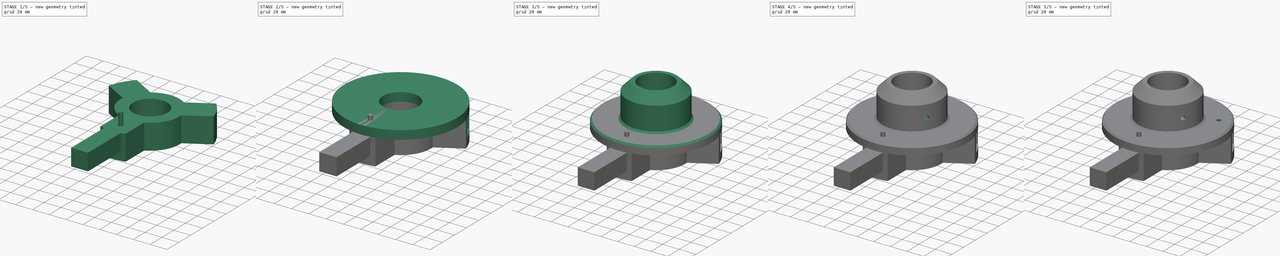
[diagram: build sequence overview — one tinted view per stage of 5, left to right]
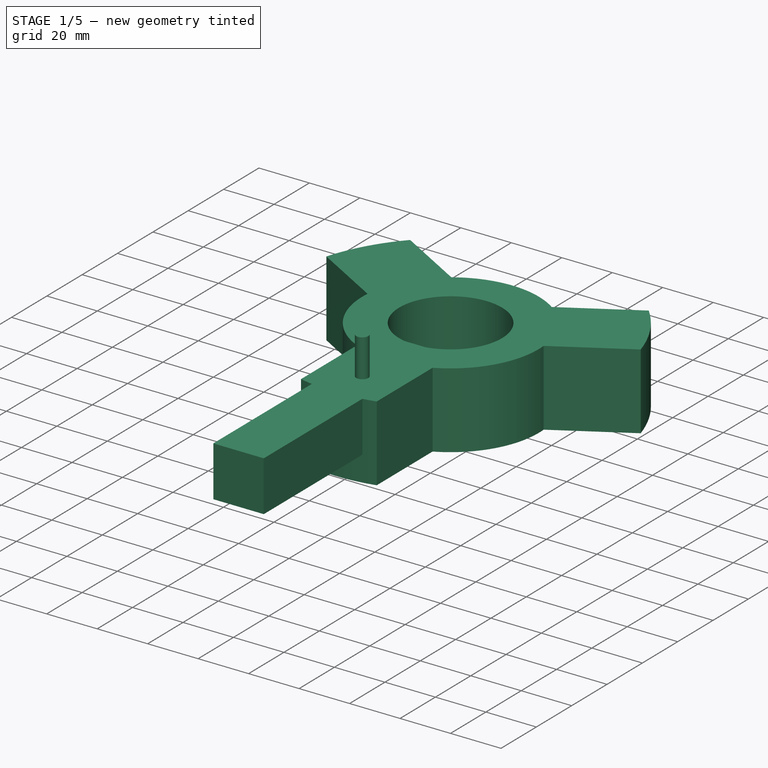
[diagram: stage 1 of 5 — iso view after this stage's code; geometry added in this stage tinted green]
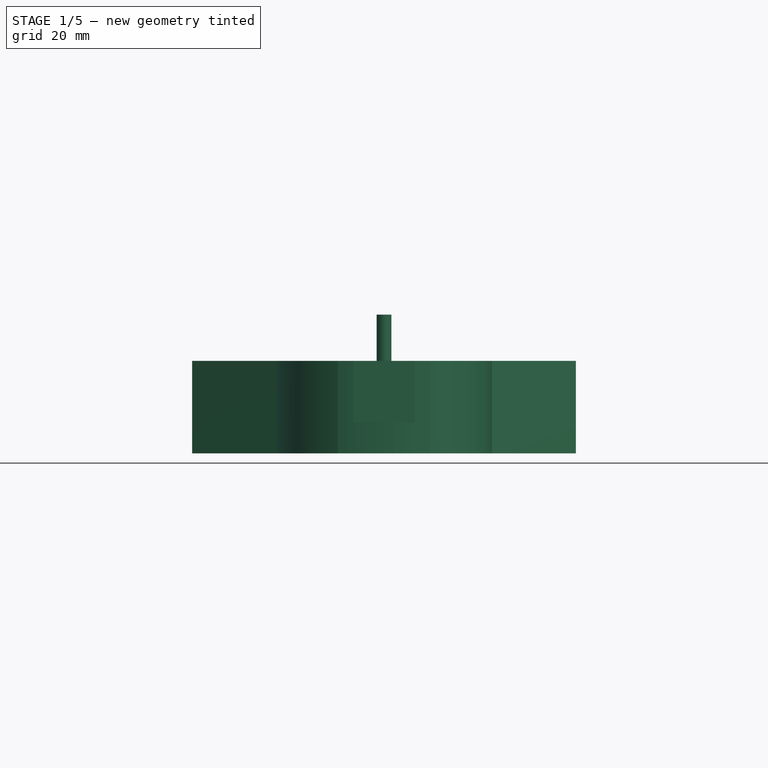
[diagram: stage 1 of 5 — front view after this stage's code; geometry added in this stage tinted green]
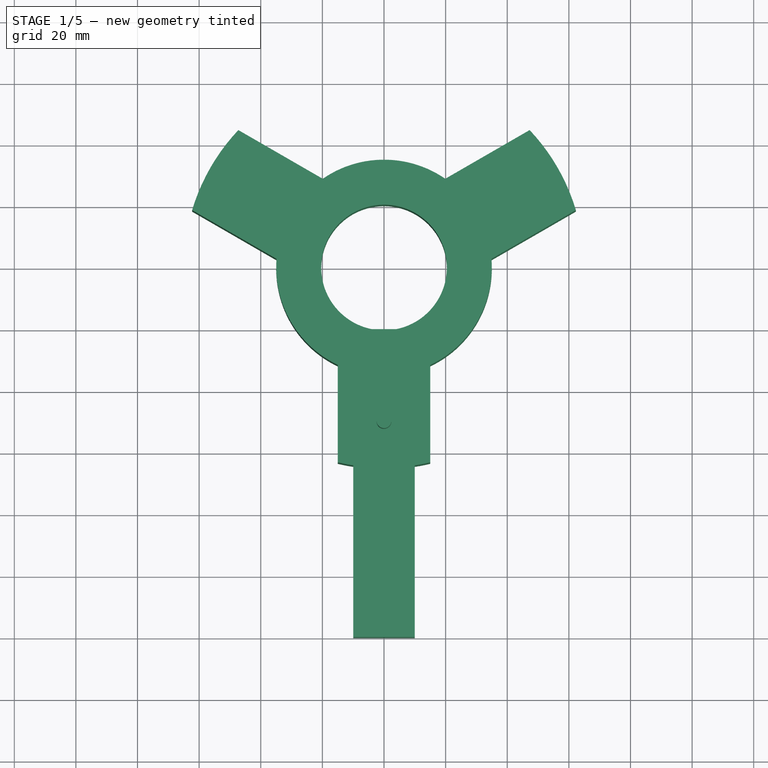
[diagram: stage 1 of 5 — top view after this stage's code; geometry added in this stage tinted green]
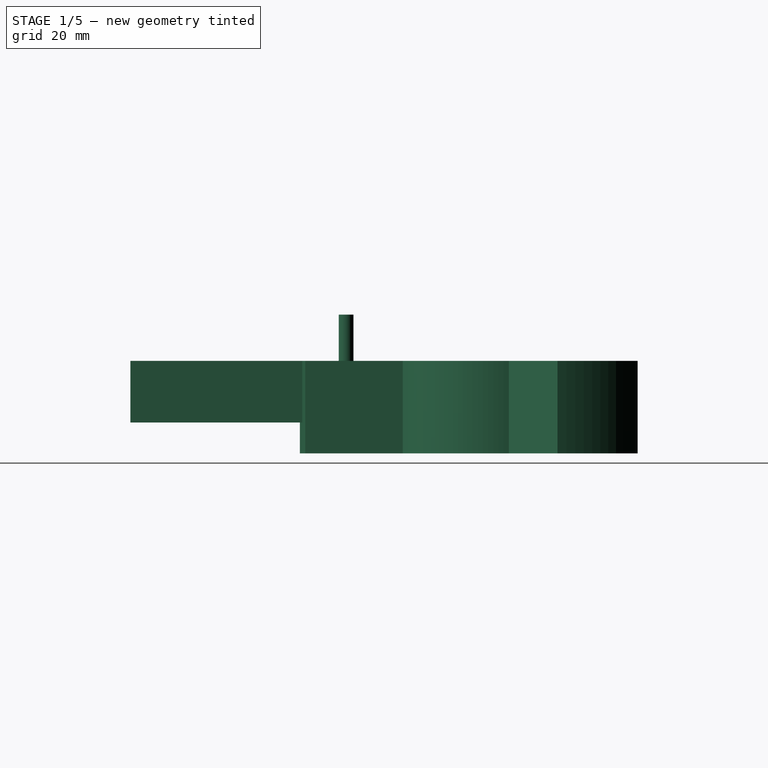
[diagram: stage 1 of 5 — right view after this stage's code; geometry added in this stage tinted green]
FCSTD DOCUMENT  (FreeCAD 0.19R)
Label: reflector_keeper
License: All rights reserved
LicenseURL: http://en.wikipedia.org/wiki/All_rights_reserved
objects: Sketcher::SketchObject×13, PartDesign::Pocket×10, PartDesign::Pad×3, PartDesign::Chamfer×2, PartDesign::Body×2, Part::Box×1, Part::Cylinder×1
note: 45 computed .brp shape members not serialized (recipe doc carries the construction recipe); baked Part::Feature solids carry a one-line shape summary decoded from their .brp

FEATURE [Sketcher::SketchObject] Sketch
  MapMode = 5
  Support = -> [XY_Plane]
  expr: Constraints[36] = .Constraints.holder_width
  expr: Constraints[35] = .Constraints.holder_width
  expr: Constraints[7] = .Constraints.holder_width * 0.5
  sketch-geometry (13):
    g0: Circle CenterX=0 CenterY=0 CenterZ=0 NormalX=0 NormalY=0 NormalZ=1 AngleXU=0 Radius=20.4
    g1: ArcOfCircle CenterX=0 CenterY=0 CenterZ=0 NormalX=0 NormalY=0 NormalZ=1 AngleXU=0 Radius=35 StartAngle=5.1553 EndAngle=6.36387
    g2: LineSegment StartX=-15 StartY=-31.6228 StartZ=0 EndX=-15 EndY=-63.2456 EndZ=0
    g3: LineSegment StartX=15 StartY=-63.2456 StartZ=0 EndX=15 EndY=-31.6228 EndZ=0
    g4: LineSegment StartX=-34.8861 StartY=2.82101 StartZ=0 EndX=-62.2723 EndY=18.6324 EndZ=0
    g5: LineSegment StartX=-47.2723 StartY=44.6132 StartZ=0 EndX=-19.8861 EndY=28.8018 EndZ=0
    g6: LineSegment StartX=19.8861 StartY=28.8018 StartZ=0 EndX=47.2723 EndY=44.6132 EndZ=0
    g7: LineSegment StartX=62.2723 StartY=18.6324 StartZ=0 EndX=34.8861 EndY=2.82101 EndZ=0
    g8: ArcOfCircle CenterX=0 CenterY=0 CenterZ=0 NormalX=0 NormalY=0 NormalZ=1 AngleXU=0 Radius=35 StartAngle=3.0609 EndAngle=4.26948
    g9: ArcOfCircle CenterX=0 CenterY=0 CenterZ=0 NormalX=0 NormalY=0 NormalZ=1 AngleXU=0 Radius=35 StartAngle=0.96651 EndAngle=2.17508
    g10: ArcOfCircle CenterX=0 CenterY=0 CenterZ=0 NormalX=0 NormalY=0 NormalZ=1 AngleXU=0 Radius=65 StartAngle=2.38513 EndAngle=2.85086
    g11: ArcOfCircle CenterX=0 CenterY=0 CenterZ=0 NormalX=0 NormalY=0 NormalZ=1 AngleXU=0 Radius=65 StartAngle=0.290731 EndAngle=0.756467
    g12: ArcOfCircle CenterX=0 CenterY=0 CenterZ=0 NormalX=0 NormalY=0 NormalZ=1 AngleXU=0 Radius=65 StartAngle=4.47952 EndAngle=4.94526
  constraints (40):
    c: Coincident(g0,g-1)
    c: Diameter(g0) = 40.8  'inner_diameter'
    c: Coincident(g1,g0)
    c: Diameter(g1) = 70
    c: Vertical(g2)
    c: Vertical(g3)
    c: DistanceX(g2,g3) = 30  'holder_width'
    c: DistanceX(g2,g-1) = 15
    c: Coincident(g1,g3)
    c: Coincident(g8,g2)
    c: Parallel(g4,g5)
    c: Equal(g2,g4)
    c: Equal(g4,g5)
    c: Parallel(g6,g7)
    c: Equal(g2,g6)
    c: Equal(g6,g7)
    c: Equal(g1,g8)
    c: Coincident(g9,g5)
    c: Coincident(g8,g4)
    c: Coincident(g1,g8)
    c: Coincident(g1,g7)
    c: Coincident(g9,g6)
    c: Coincident(g1,g9)
    c: Coincident(g10,g0)
    c: Coincident(g10,g4)
    c: Coincident(g11,g0)
    c: Coincident(g11,g6)
    c: Coincident(g11,g7)
    c: Coincident(g12,g0)
    c: Coincident(g12,g3)
    c: Coincident(g12,g2)
    c: Equal(g8,g9)
    c: Coincident(g5,g10)
    c: Equal(g2,g7)
    c: Equal(g4,g2)
    c: Distance(g6,g7) = 30
    c: Distance(g5,g4) = 30
    c: Angle(g4,g2) = 2.0944
    c: Angle(g3,g7) = 2.0944
    c: Radius(g12) = 65  'length_a'
FEATURE [PartDesign::Pad] Pad
  Length = 30
  Length2 = 100
  Profile = -> Sketch
  Type = 0
FEATURE [PartDesign::Body] Body  label="BottomBody"
  Group = -> [Sketch,Pad,Pocket010,Sketch012,Sketch010,Pocket008,Sketch011,Pocket009]
  Origin = -> Origin
  Tip = -> Pocket009
FEATURE [Part::Box] Box  label="Profile"
  AttacherType = Attacher::AttachEngine3D
  Height = 20
  Length = 20
  Placement = pos=(-10,-120,10) rot=(0,0,1;0rad)
  Width = 100
FEATURE [Part::Cylinder] Cylinder  label="Skrew"
  Angle = 360
  AttacherType = Attacher::AttachEngine3D
  Height = 45
  Placement = pos=(0,-50,0) rot=(0,0,1;0rad)
  Radius = 2.4
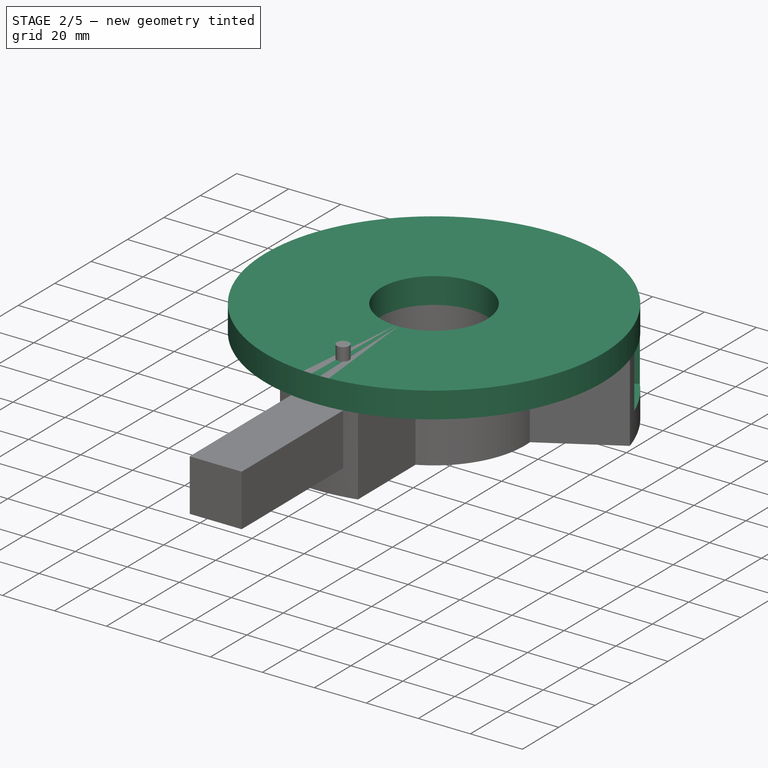
[diagram: stage 2 of 5 — iso view after this stage's code; geometry added in this stage tinted green]
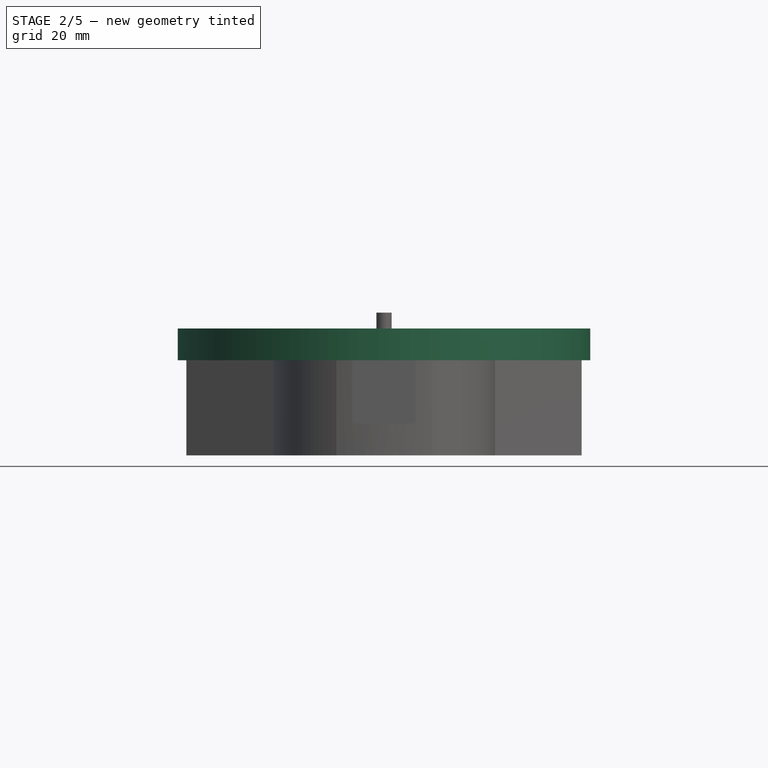
[diagram: stage 2 of 5 — front view after this stage's code; geometry added in this stage tinted green]
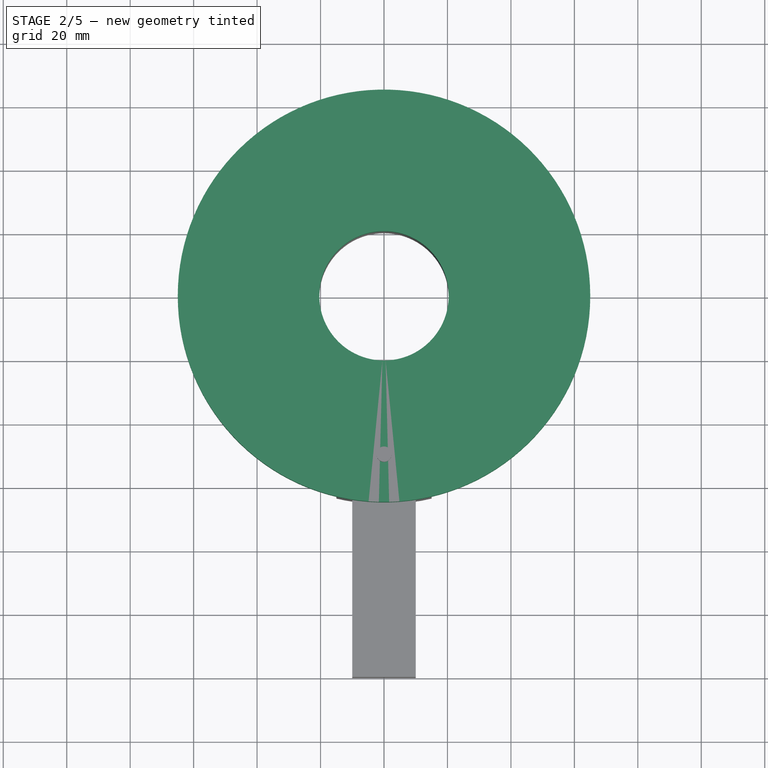
[diagram: stage 2 of 5 — top view after this stage's code; geometry added in this stage tinted green]
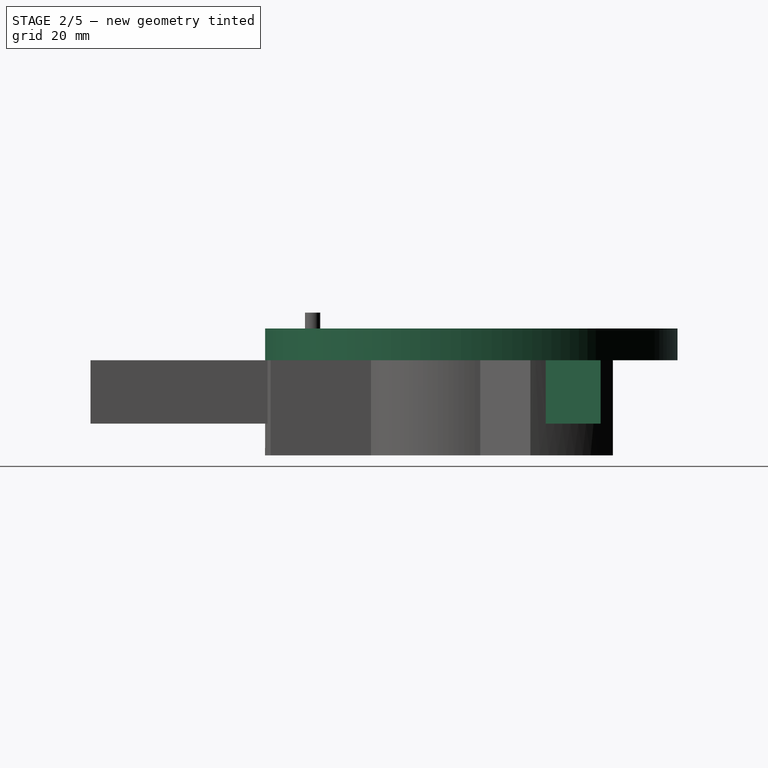
[diagram: stage 2 of 5 — right view after this stage's code; geometry added in this stage tinted green]
FEATURE [Sketcher::SketchObject] Sketch004
  AttachmentOffset = pos=(0,0,30) rot=(0,0,1;0rad)
  MapMode = 5
  Placement = pos=(0,0,30) rot=(0,0,1;0rad)
  Support = -> [XY_Plane001]
  expr: .AttachmentOffset.Base.z = Pad.Length
  expr: Constraints[3] = Sketch.Constraints.inner_diameter
  sketch-geometry (2):
    g0: Circle CenterX=0 CenterY=0 CenterZ=0 NormalX=0 NormalY=0 NormalZ=1 AngleXU=0 Radius=65
    g1: Circle CenterX=0 CenterY=0 CenterZ=0 NormalX=0 NormalY=0 NormalZ=1 AngleXU=0 Radius=20.4
  constraints (4):
    c: Coincident(g0,g-1)
    c: Radius(g0) = 65
    c: Coincident(g1,g0)
    c: Diameter(g1) = 40.8
FEATURE [PartDesign::Pad] Pad001
  Length = 10
  Length2 = 100
  Profile = -> Sketch004
  Type = 0
FEATURE [PartDesign::Body] Body001  label="TopBody"
  Group = -> [Pad001,Pad002,Sketch002,Sketch004,Chamfer,Chamfer001,CopySketch006,Pocket001,CopySketch007,Pocket002,CopySketch008,Pocket003,Sketch006,Pocket004,Sketch007,Pocket005,Sketch008,Pocket006,Sketch009,Pocket007]
  Origin = -> Origin001
  Tip = -> Pocket007
FEATURE [Sketcher::SketchObject] Sketch010  label="SketchBottomHoles002"
  MapMode = 5
  Support = -> [XY_Plane]
  sketch-geometry (7):
    g0: Circle CenterX=0 CenterY=-50 CenterZ=0 NormalX=0 NormalY=0 NormalZ=1 AngleXU=0 Radius=2.5
    g1: Circle [constr] CenterX=0 CenterY=0 CenterZ=0 NormalX=0 NormalY=0 NormalZ=1 AngleXU=0 Radius=50
    g2: Circle CenterX=-43.3013 CenterY=25 CenterZ=0 NormalX=0 NormalY=0 NormalZ=1 AngleXU=0 Radius=2.5
    g3: Circle CenterX=43.3013 CenterY=25 CenterZ=0 NormalX=0 NormalY=0 NormalZ=1 AngleXU=0 Radius=2.5
    g4: LineSegment [constr] StartX=-43.3013 StartY=25 StartZ=0 EndX=0 EndY=0 EndZ=0
    g5: LineSegment [constr] StartX=0 StartY=0 StartZ=0 EndX=0 EndY=-50 EndZ=0
    g6: LineSegment [constr] StartX=0 StartY=0 StartZ=0 EndX=43.3013 EndY=25 EndZ=0
  constraints (17):
    c: Coincident(g1,g-1)
    c: Radius(g1) = 50
    c: PointOnObject(g0,g1)
    c: Diameter(g0) = 5  'hole_size'
    c: PointOnObject(g2,g1)
    c: Equal(g2,g0)
    c: PointOnObject(g3,g1)
    c: Equal(g3,g0)
    c: Coincident(g4,g2)
    c: Coincident(g4,g1)
    c: Coincident(g5,g1)
    c: Coincident(g5,g0)
    c: Vertical(g5)
    c: Coincident(g6,g1)
    c: Coincident(g6,g3)
    c: Angle(g4,g5) = 2.0944
    c: Angle(g5,g6) = 2.0944
FEATURE [Sketcher::SketchObject] Sketch011  label="SketchBottomNutHoles001"
  MapMode = 5
  Support = -> [XY_Plane]
  sketch-geometry (25):
    g0: Circle [constr] CenterX=0 CenterY=0 CenterZ=0 NormalX=0 NormalY=0 NormalZ=1 AngleXU=0 Radius=50
    g1: LineSegment [constr] StartX=-43.3013 StartY=25 StartZ=0 EndX=0 EndY=0 EndZ=0
    g2: LineSegment [constr] StartX=0 StartY=0 StartZ=0 EndX=0 EndY=-50 EndZ=0
    g3: LineSegment [constr] StartX=0 StartY=0 StartZ=0 EndX=43.3013 EndY=25 EndZ=0
    g4: LineSegment StartX=0 StartY=-45.35 StartZ=0 EndX=-4.02702 EndY=-47.675 EndZ=0
    g5: LineSegment StartX=-4.02702 StartY=-47.675 StartZ=0 EndX=-4.02702 EndY=-52.325 EndZ=0
    g6: LineSegment StartX=-4.02702 StartY=-52.325 StartZ=0 EndX=0 EndY=-54.65 EndZ=0
    g7: LineSegment StartX=4e-16 StartY=-54.65 StartZ=0 EndX=4.02702 EndY=-52.325 EndZ=0
    g8: LineSegment StartX=4.02702 StartY=-52.325 StartZ=0 EndX=4.02702 EndY=-47.675 EndZ=0
    g9: LineSegment StartX=4.02702 StartY=-47.675 StartZ=0 EndX=0 EndY=-45.35 EndZ=0
    g10: Circle [constr] CenterX=0 CenterY=-50 CenterZ=0 NormalX=0 NormalY=0 NormalZ=1 AngleXU=0 Radius=4.65
    g11: LineSegment StartX=-39.2743 StartY=22.675 StartZ=0 EndX=-39.2743 EndY=27.325 EndZ=0
    g12: LineSegment StartX=-39.2743 StartY=27.325 StartZ=0 EndX=-43.3013 EndY=29.65 EndZ=0
    g13: LineSegment StartX=-43.3013 StartY=29.65 StartZ=0 EndX=-47.3283 EndY=27.325 EndZ=0
    g14: LineSegment StartX=-47.3283 StartY=27.325 StartZ=0 EndX=-47.3283 EndY=22.675 EndZ=0
    g15: LineSegment StartX=-47.3283 StartY=22.675 StartZ=0 EndX=-43.3013 EndY=20.35 EndZ=0
    g16: LineSegment StartX=-43.3013 StartY=20.35 StartZ=0 EndX=-39.2743 EndY=22.675 EndZ=0
    g17: Circle [constr] CenterX=-43.3013 CenterY=25 CenterZ=0 NormalX=0 NormalY=0 NormalZ=1 AngleXU=0 Radius=4.65
    g18: LineSegment StartX=39.2743 StartY=22.675 StartZ=0 EndX=43.3013 EndY=20.35 EndZ=0
    g19: LineSegment StartX=43.3013 StartY=20.35 StartZ=0 EndX=47.3283 EndY=22.675 EndZ=0
    g20: LineSegment StartX=47.3283 StartY=22.675 StartZ=0 EndX=47.3283 EndY=27.325 EndZ=0
    g21: LineSegment StartX=47.3283 StartY=27.325 StartZ=0 EndX=43.3013 EndY=29.65 EndZ=0
    g22: LineSegment StartX=43.3013 StartY=29.65 StartZ=0 EndX=39.2743 EndY=27.325 EndZ=0
    g23: LineSegment StartX=39.2743 StartY=27.325 StartZ=0 EndX=39.2743 EndY=22.675 EndZ=0
    g24: Circle [constr] CenterX=43.3013 CenterY=25 CenterZ=0 NormalX=0 NormalY=0 NormalZ=1 AngleXU=0 Radius=4.65
  constraints (59):
    c: Coincident(g0,g-1)
    c: Radius(g0) = 50
    c: Coincident(g1,g0)
    c: Coincident(g2,g0)
    c: Vertical(g2)
    c: Coincident(g3,g0)
    c: Angle(g1,g2) = 2.0944
    c: Angle(g2,g3) = 2.0944
    c: Coincident(g4,g5)
    c: Coincident(g5,g6)
    c: Coincident(g6,g7)
    c: Coincident(g7,g8)
    c: Coincident(g8,g9)
    c: Coincident(g9,g4)
    c: Equal(g4, g5-g9) x5
    c: PointOnObject(g4,g10)
    c: PointOnObject(g5,g10)
    c: PointOnObject(g6,g10)
    c: PointOnObject(g7,g10)
    c: PointOnObject(g8,g10)
    c: PointOnObject(g9,g10)
    c: Coincident(g10,g2)
    c: PointOnObject(g9,g2)
    c: Diameter(g10) = 9.3
    c: Coincident(g11,g12)
    c: Coincident(g12,g13)
    c: Coincident(g13,g14)
    c: Coincident(g14,g15)
    c: Coincident(g15,g16)
    c: Coincident(g16,g11)
    c: Equal(g11, g12-g16) x5
    c: PointOnObject(g11,g17)
    c: PointOnObject(g12,g17)
    c: PointOnObject(g13,g17)
    c: PointOnObject(g14,g17)
    c: PointOnObject(g15,g17)
    c: PointOnObject(g16,g17)
    c: Coincident(g17,g1)
    c: PointOnObject(g16,g1)
    c: Equal(g17,g10)
    c: Coincident(g18,g19)
    c: Coincident(g19,g20)
    c: Coincident(g20,g21)
    c: Coincident(g21,g22)
    c: Coincident(g22,g23)
    c: Coincident(g23,g18)
    c: Equal(g18, g19-g23) x5
    c: PointOnObject(g18,g24)
    c: PointOnObject(g19,g24)
    c: PointOnObject(g20,g24)
    c: PointOnObject(g21,g24)
    c: PointOnObject(g22,g24)
    c: PointOnObject(g23,g24)
    c: Coincident(g24,g3)
    c: PointOnObject(g23,g3)
    c: Equal(g10,g24)
    c: PointOnObject(g3,g0)
    c: PointOnObject(g1,g0)
    c: PointOnObject(g2,g0)
FEATURE [Sketcher::SketchObject] Sketch012  label="SketchBottomPocket"
  MapMode = 5
  Placement = pos=(0,0,30) rot=(0,0,1;0rad)
  Support = -> [Pad]
  expr: Constraints[37] = .Constraints.width_a * 0.5
  expr: Constraints[38] = .Constraints.width_a * 0.5
  expr: Constraints[32] = Sketch.Constraints.length_a + 5mm
  expr: Constraints[26] = .Constraints.length_b
  expr: Constraints[19] = Sketch.Constraints.length_a + 5mm
  expr: Constraints[10] = .Constraints.width_a * 0.5
  expr: Constraints[20] = Sketch.Constraints.length_a + 5mm
  sketch-geometry (14):
    g0: LineSegment StartX=-10 StartY=-25 StartZ=0 EndX=-10 EndY=-70 EndZ=0
    g1: LineSegment StartX=-10 StartY=-70 StartZ=0 EndX=10 EndY=-70 EndZ=0
    g2: LineSegment StartX=10 StartY=-70 StartZ=0 EndX=10 EndY=-25 EndZ=0
    g3: LineSegment StartX=26.6506 StartY=3.83975 StartZ=0 EndX=65.6218 EndY=26.3397 EndZ=0
    g4: LineSegment StartX=65.6218 StartY=26.3397 StartZ=0 EndX=55.6218 EndY=43.6603 EndZ=0
    g5: LineSegment StartX=55.6218 StartY=43.6603 StartZ=0 EndX=16.6506 EndY=21.1603 EndZ=0
    g6: LineSegment StartX=-16.6506 StartY=21.1603 StartZ=0 EndX=-55.6218 EndY=43.6603 EndZ=0
    g7: LineSegment StartX=-55.6218 StartY=43.6603 StartZ=0 EndX=-65.6218 EndY=26.3397 EndZ=0
    g8: LineSegment StartX=-65.6218 StartY=26.3397 StartZ=0 EndX=-26.6506 EndY=3.83975 EndZ=0
    g9: LineSegment StartX=-10 StartY=-25 StartZ=0 EndX=10 EndY=-25 EndZ=0
    g10: LineSegment StartX=-26.6506 StartY=3.83975 StartZ=0 EndX=-16.6506 EndY=21.1603 EndZ=0
    g11: LineSegment StartX=16.6506 StartY=21.1603 StartZ=0 EndX=26.6506 EndY=3.83975 EndZ=0
    g12: LineSegment [constr] StartX=0 StartY=0 StartZ=0 EndX=-60.6218 EndY=35 EndZ=0
    g13: LineSegment [constr] StartX=0 StartY=0 StartZ=0 EndX=60.6218 EndY=35 EndZ=0
  constraints (44):
    c: Vertical(g0)
    c: Coincident(g0,g1)
    c: Horizontal(g1)
    c: Coincident(g1,g2)
    c: Vertical(g2)
    c: Coincident(g3,g4)
    c: Coincident(g4,g5)
    c: Coincident(g6,g7)
    c: Coincident(g7,g8)
    c: DistanceX(g1,g1) = 20  'width_a'
    c: DistanceX(g0,g-1) = 10
    c: Equal(g1,g7)
    c: Equal(g7,g4)
    c: Parallel(g8,g6)
    c: Parallel(g3,g5)
    c: Perpendicular(g7,g8)
    c: Perpendicular(g4,g3)
    c: Equal(g0,g8)
    c: Equal(g0,g3)
    c: Distance(g-1,g1) = 70
    c: Distance(g-1,g7) = 70
    c: PointOnObject(g9,g0)
    c: Horizontal(g9)
    c: DistanceY(g0,g9) = 45  'length_b'
    c: Parallel(g10,g7)
    c: Parallel(g11,g4)
    c: Distance(g11,g3) = 45
    c: Coincident(g8,g10)
    c: Coincident(g6,g10)
    c: Coincident(g2,g9)
    c: Coincident(g5,g11)
    c: Coincident(g3,g11)
    c: Distance(g-1,g4) = 70
    c: Coincident(g12,g-1)
    c: PointOnObject(g12,g7)
    c: Coincident(g13,g12)
    c: PointOnObject(g13,g4)
    c: Distance(g12,g7) = 10
    c: Distance(g13,g3) = 10
    c: Parallel(g12,g8)
    c: Parallel(g3,g13)
    c: Equal(g3,g8)
    c: Angle(g-2,g12) = 1.0472
    c: Angle(g13,g-2) = 1.0472
FEATURE [PartDesign::Pocket] Pocket010
  BaseFeature = -> Pad
  Length = 20
  Length2 = 100
  Profile = -> Sketch012
  Type = 0
FEATURE [PartDesign::Pocket] Pocket008
  BaseFeature = -> Pocket010
  Length = 5
  Length2 = 100
  Profile = -> Sketch010
  Reversed = true
  Type = 1
FEATURE [PartDesign::Pocket] Pocket009
  BaseFeature = -> Pocket008
  Length = 4.5
  Length2 = 100
  Profile = -> Sketch011
  Reversed = true
  Type = 0
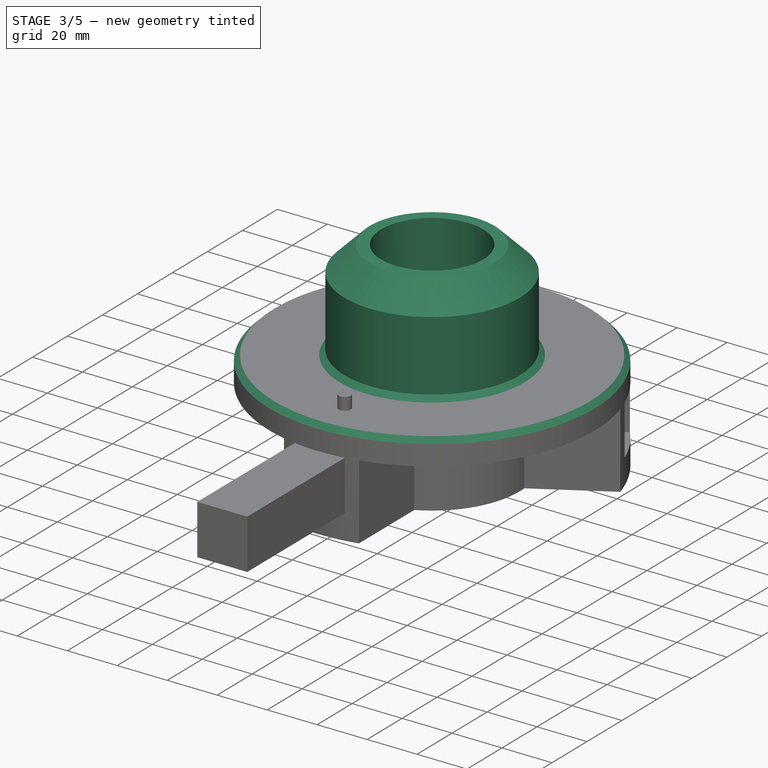
[diagram: stage 3 of 5 — iso view after this stage's code; geometry added in this stage tinted green]
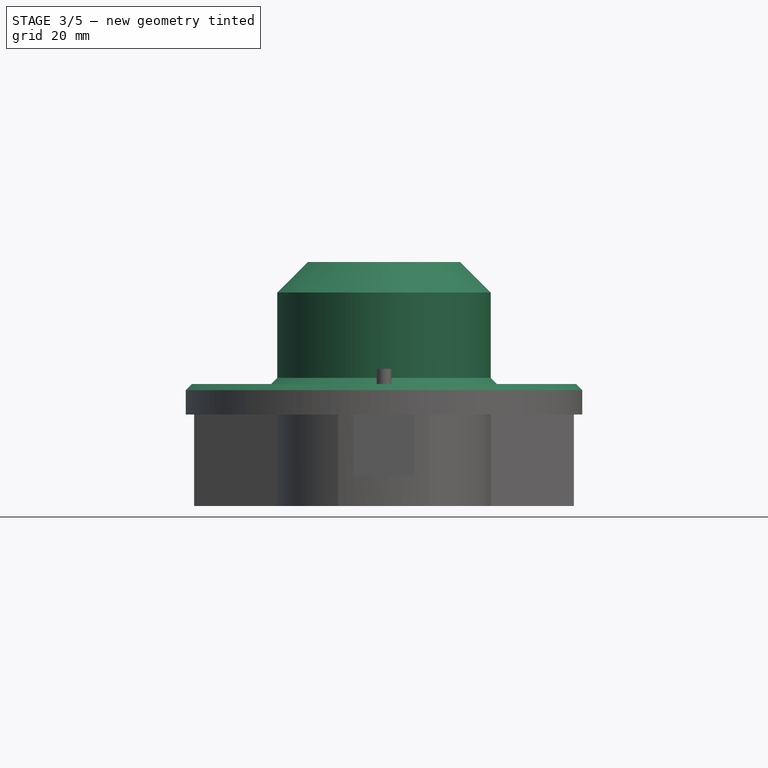
[diagram: stage 3 of 5 — front view after this stage's code; geometry added in this stage tinted green]
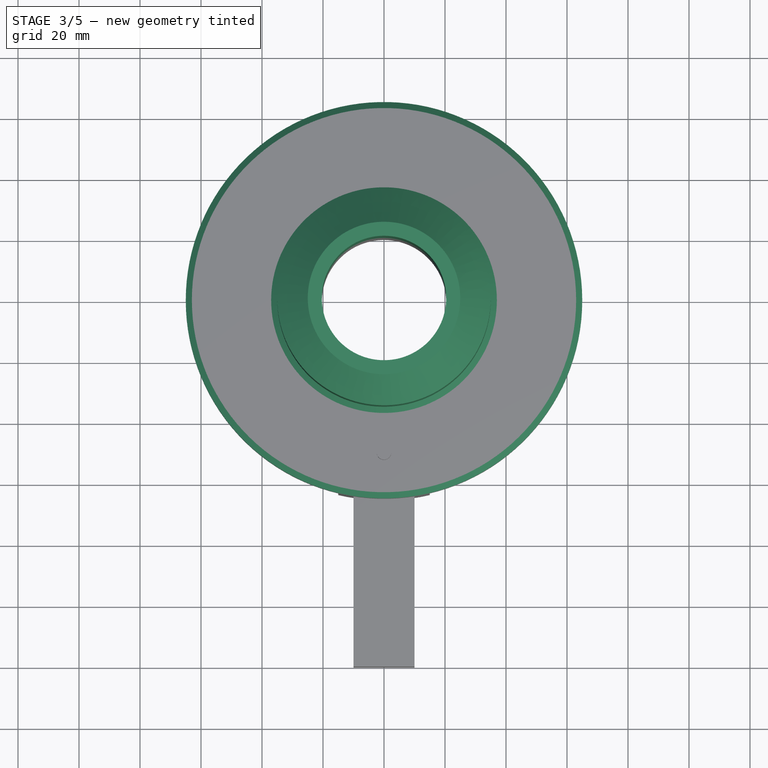
[diagram: stage 3 of 5 — top view after this stage's code; geometry added in this stage tinted green]
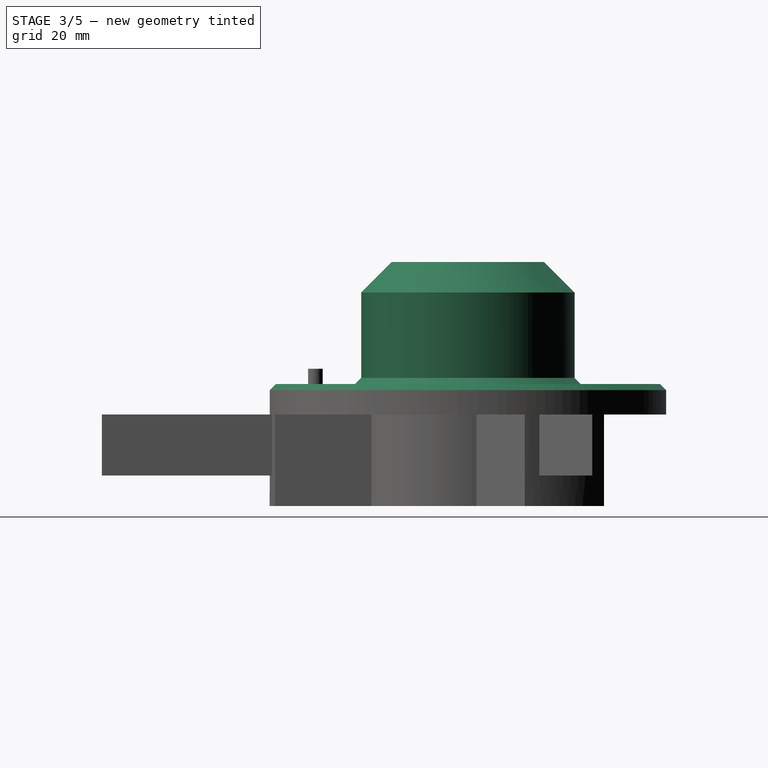
[diagram: stage 3 of 5 — right view after this stage's code; geometry added in this stage tinted green]
FEATURE [Sketcher::SketchObject] Sketch002
  MapMode = 5
  Placement = pos=(0,0,40) rot=(0,0,1;0rad)
  Support = -> [Pad001]
  expr: Constraints[3] = Sketch.Constraints.inner_diameter
  sketch-geometry (2):
    g0: Circle CenterX=0 CenterY=0 CenterZ=0 NormalX=0 NormalY=0 NormalZ=1 AngleXU=0 Radius=35
    g1: Circle CenterX=0 CenterY=0 CenterZ=0 NormalX=0 NormalY=0 NormalZ=1 AngleXU=0 Radius=20.4
  constraints (4):
    c: Coincident(g0,g-1)
    c: Radius(g0) = 35
    c: Coincident(g1,g0)
    c: Diameter(g1) = 40.8
FEATURE [PartDesign::Pad] Pad002
  BaseFeature = -> Pad001
  Length = 40
  Length2 = 100
  Profile = -> Sketch002
  Type = 0
FEATURE [PartDesign::Chamfer] Chamfer
  Base = -> Pad002 [Face3]
  BaseFeature = -> Pad002
  Size = 2
FEATURE [PartDesign::Chamfer] Chamfer001
  Base = -> Chamfer [Edge15]
  BaseFeature = -> Chamfer
  Size = 10
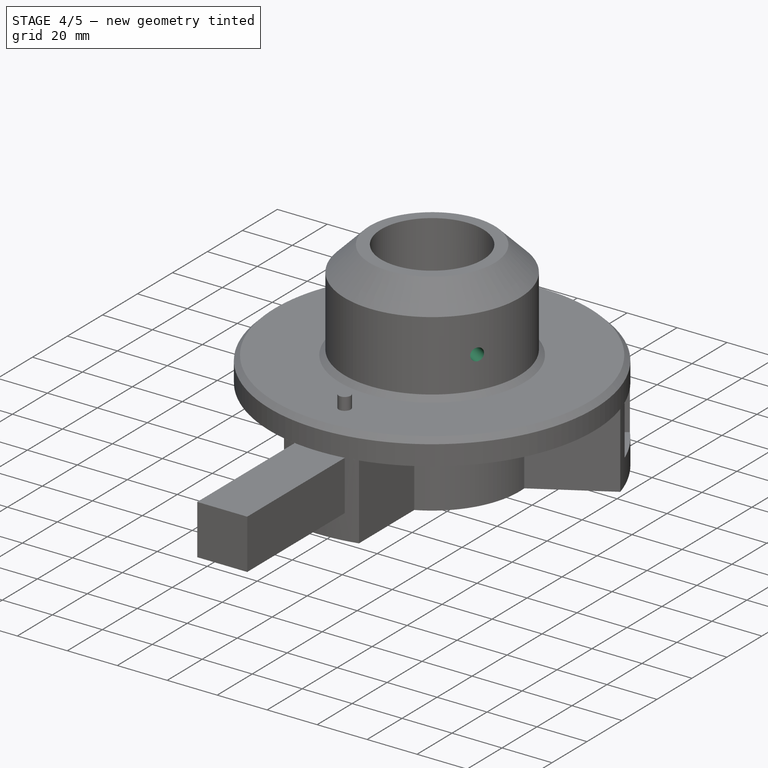
[diagram: stage 4 of 5 — iso view after this stage's code; geometry added in this stage tinted green]
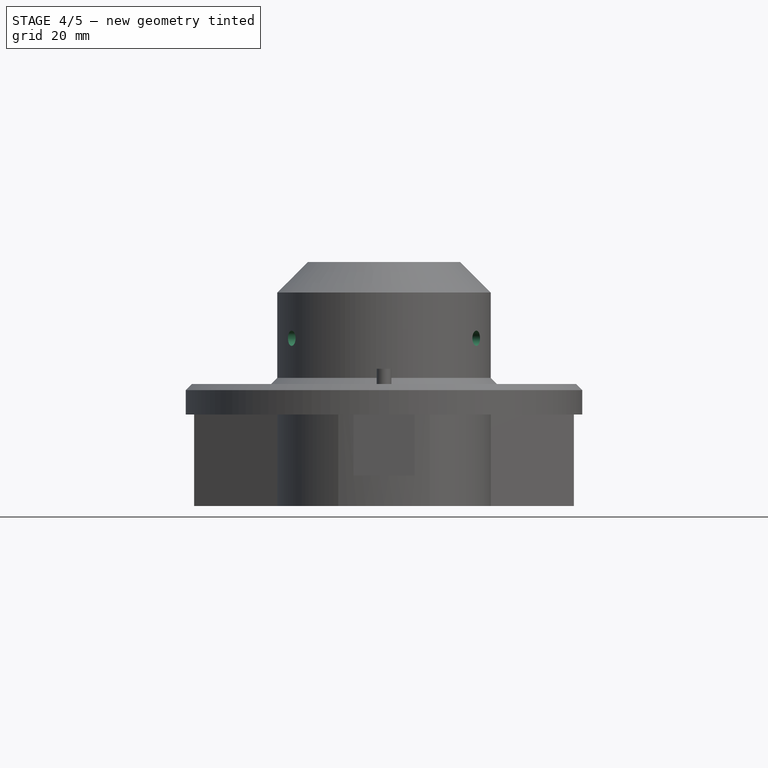
[diagram: stage 4 of 5 — front view after this stage's code; geometry added in this stage tinted green]
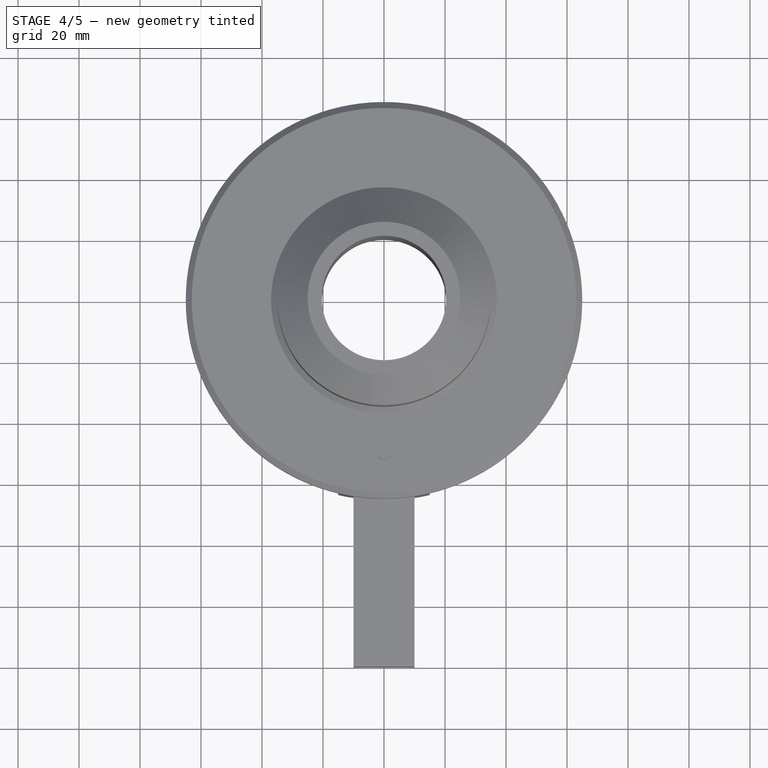
[diagram: stage 4 of 5 — top view after this stage's code; geometry added in this stage tinted green]
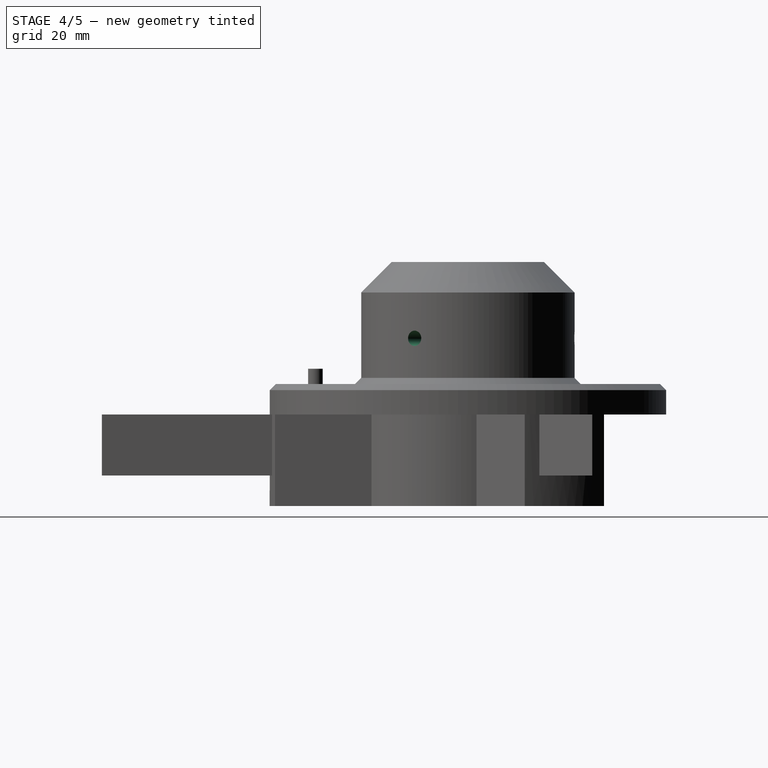
[diagram: stage 4 of 5 — right view after this stage's code; geometry added in this stage tinted green]
FEATURE [Sketcher::SketchObject] CopySketch006  label="SketchHole001"
  AttachmentOffset = pos=(55,0,0) rot=(-1,0,0;1.0472rad)
  MapMode = 2
  Placement = pos=(-2.14e-14,2.14e-14,55) rot=(0.694747,0.186157,0.694747;3.50969rad)
  Support = -> [Z_Axis001]
  expr: .AttachmentOffset.Base.x = Pad.Length + 25mm
  sketch-geometry (1):
    g0: Circle CenterX=0 CenterY=0 CenterZ=0 NormalX=0 NormalY=0 NormalZ=1 AngleXU=0 Radius=2.5
  constraints (2):
    c: Diameter(g0) = 5
    c: Coincident(g0,g-1)
FEATURE [PartDesign::Pocket] Pocket001  label="PocketHole001"
  BaseFeature = -> Chamfer001
  Length = 5
  Length2 = 100
  Profile = -> CopySketch006
  Type = 1
FEATURE [Sketcher::SketchObject] CopySketch007  label="SketchHole002"
  AttachmentOffset = pos=(55,0,0) rot=(1,0,0;1.0472rad)
  MapMode = 2
  Placement = pos=(-2.14e-14,2.14e-14,55) rot=(0.250563,0.935113,0.250563;4.64535rad)
  Support = -> [Z_Axis001]
  expr: .AttachmentOffset.Base.x = Pad.Length + 25mm
  sketch-geometry (1):
    g0: Circle CenterX=0 CenterY=0 CenterZ=0 NormalX=0 NormalY=0 NormalZ=1 AngleXU=0 Radius=2.5
  constraints (2):
    c: Diameter(g0) = 5
    c: Coincident(g0,g-1)
FEATURE [PartDesign::Pocket] Pocket002  label="PocketHole002"
  BaseFeature = -> Pocket001
  Length = 5
  Length2 = 100
  Profile = -> CopySketch007
  Type = 1
FEATURE [Sketcher::SketchObject] CopySketch008  label="SketchHole003"
  AttachmentOffset = pos=(55,0,0) rot=(1,0,0;3.14159rad)
  MapMode = 2
  Placement = pos=(-2.14e-14,2.14e-14,55) rot=(-0.57735,0.57735,-0.57735;4.18879rad)
  Support = -> [Z_Axis001]
  expr: .AttachmentOffset.Base.x = Pad.Length + 25mm
  sketch-geometry (1):
    g0: Circle CenterX=0 CenterY=0 CenterZ=0 NormalX=0 NormalY=0 NormalZ=1 AngleXU=0 Radius=2.5
  constraints (2):
    c: Diameter(g0) = 5
    c: Coincident(g0,g-1)
FEATURE [PartDesign::Pocket] Pocket003  label="PocketHole003"
  BaseFeature = -> Pocket002
  Length = 5
  Length2 = 100
  Profile = -> CopySketch008
  Type = 1
FEATURE [Sketcher::SketchObject] Sketch006  label="SketchNut001"
  AttachmentOffset = pos=(55,0,0) rot=(0,0,1;0rad)
  MapMode = 2
  Placement = pos=(-2.14e-14,2.14e-14,55) rot=(0.57735,0.57735,0.57735;4.18879rad)
  Support = -> [Z_Axis001]
  expr: .AttachmentOffset.Base.x = Pad.Length + 25mm
  sketch-geometry (7):
    g0: LineSegment StartX=4.65 StartY=-2.82e-12 StartZ=0 EndX=2.325 EndY=4.02702 EndZ=0
    g1: LineSegment StartX=2.325 StartY=4.02702 StartZ=0 EndX=-2.325 EndY=4.02702 EndZ=0
    g2: LineSegment StartX=-2.325 StartY=4.02702 StartZ=0 EndX=-4.65 EndY=8.5123e-12 EndZ=0
    g3: LineSegment StartX=-4.65 StartY=8.5123e-12 StartZ=0 EndX=-2.325 EndY=-4.02702 EndZ=0
    g4: LineSegment StartX=-2.325 StartY=-4.02702 StartZ=0 EndX=2.325 EndY=-4.02702 EndZ=0
    g5: LineSegment StartX=2.325 StartY=-4.02702 StartZ=0 EndX=4.65 EndY=-2.82e-12 EndZ=0
    g6: Circle [constr] CenterX=0 CenterY=0 CenterZ=0 NormalX=0 NormalY=0 NormalZ=1 AngleXU=0 Radius=4.65
  constraints (16):
    c: Coincident(g0,g1)
    c: Coincident(g1,g2)
    c: Coincident(g2,g3)
    c: Coincident(g3,g4)
    c: Coincident(g4,g5)
    c: Coincident(g5,g0)
    c: Equal(g0, g1-g5) x5
    c: PointOnObject(g0,g6)
    c: PointOnObject(g1,g6)
    c: PointOnObject(g2,g6)
    c: PointOnObject(g3,g6)
    c: PointOnObject(g4,g6)
    c: PointOnObject(g5,g6)
    c: Parallel(g4,g-1)
    c: Diameter(g6) = 9.3
    c: Coincident(g6,g-1)
FEATURE [PartDesign::Pocket] Pocket004  label="PocketNut001"
  BaseFeature = -> Pocket003
  Length = 24.9
  Length2 = 100
  Profile = -> Sketch006
  Reversed = true
  Type = 0
  expr: Length = Sketch.Constraints.inner_diameter * 0.5 + 4.5mm
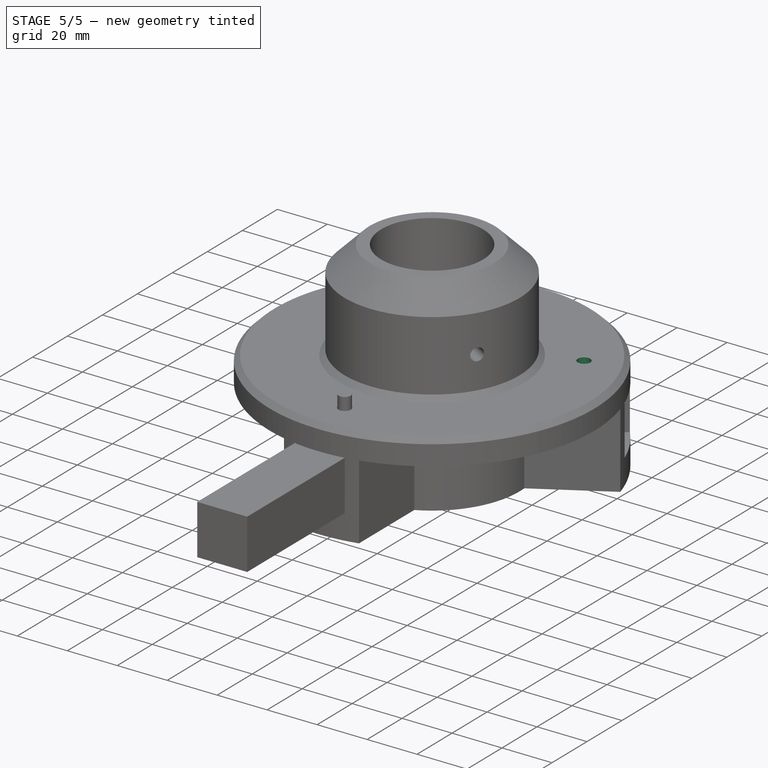
[diagram: stage 5 of 5 — iso view after this stage's code; geometry added in this stage tinted green]
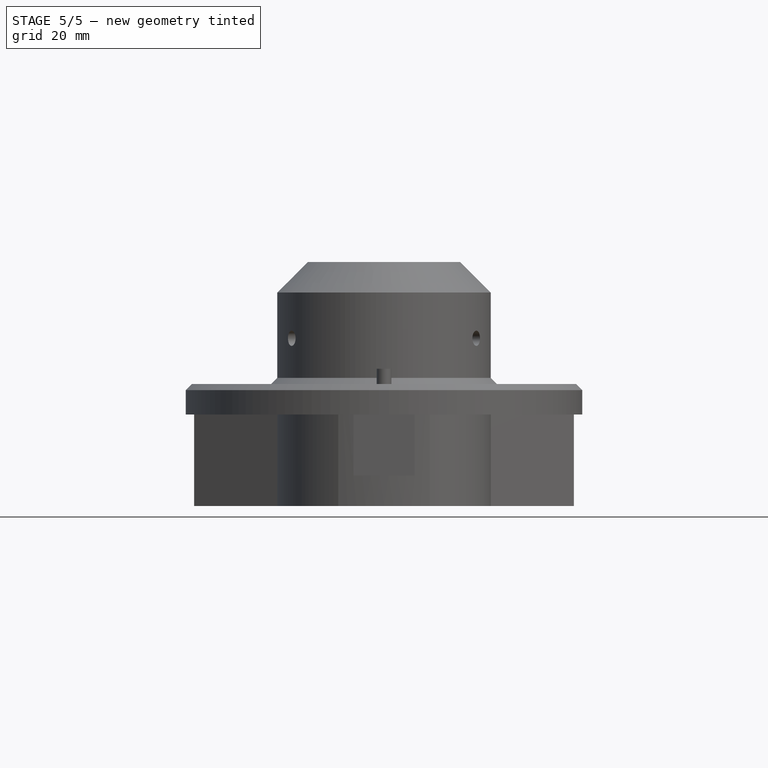
[diagram: stage 5 of 5 — front view after this stage's code; geometry added in this stage tinted green]
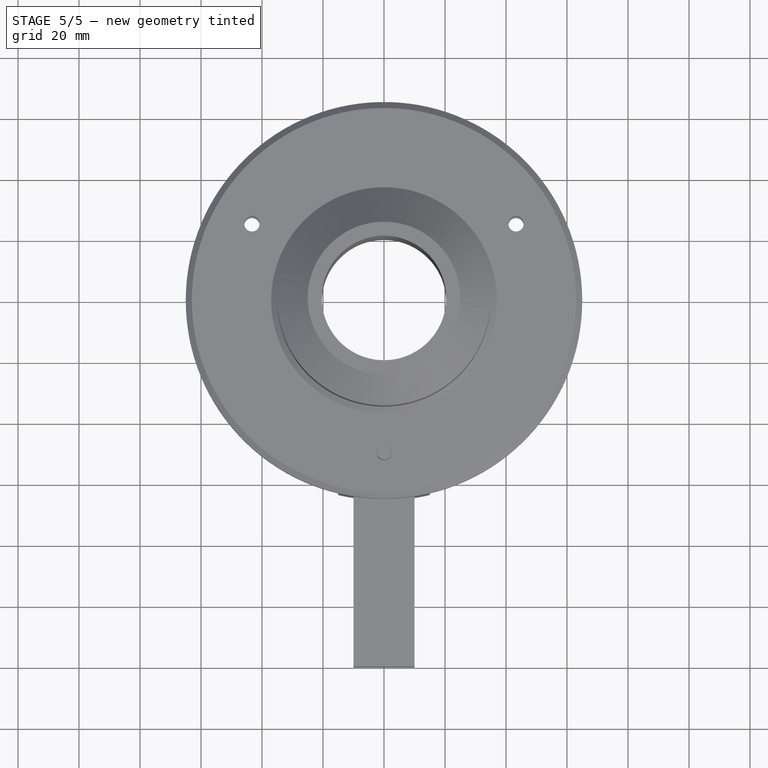
[diagram: stage 5 of 5 — top view after this stage's code; geometry added in this stage tinted green]
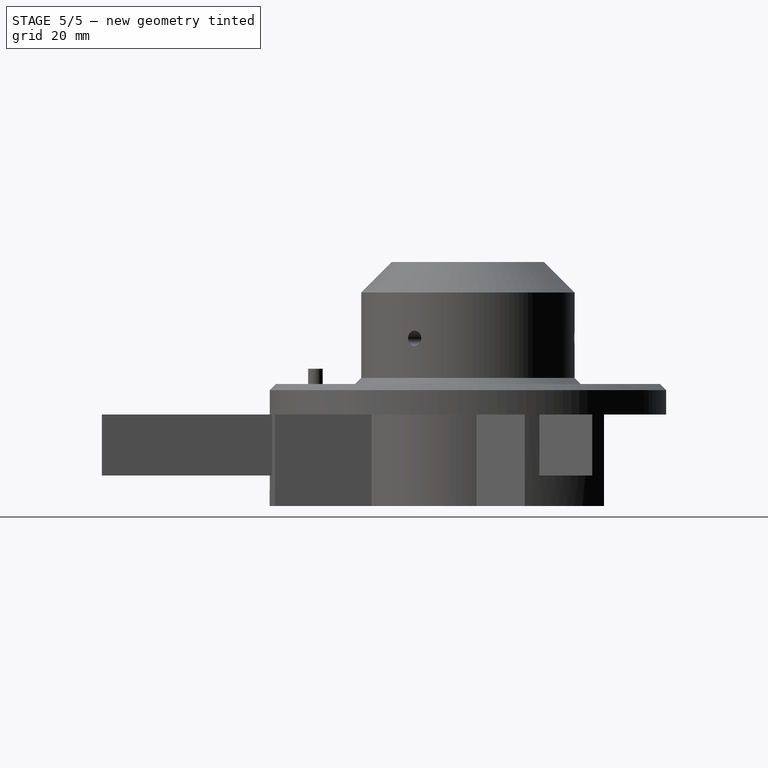
[diagram: stage 5 of 5 — right view after this stage's code; geometry added in this stage tinted green]
FEATURE [Sketcher::SketchObject] Sketch007  label="SketchNut002"
  AttachmentOffset = pos=(55,0,0) rot=(1,0,0;1.0472rad)
  MapMode = 2
  Placement = pos=(-2.14e-14,2.14e-14,55) rot=(0.250563,0.935113,0.250563;4.64535rad)
  Support = -> [Z_Axis001]
  expr: .AttachmentOffset.Base.x = Pad.Length + 25mm
  sketch-geometry (7):
    g0: LineSegment StartX=4.65 StartY=-2.82e-12 StartZ=0 EndX=2.325 EndY=4.02702 EndZ=0
    g1: LineSegment StartX=2.325 StartY=4.02702 StartZ=0 EndX=-2.325 EndY=4.02702 EndZ=0
    g2: LineSegment StartX=-2.325 StartY=4.02702 StartZ=0 EndX=-4.65 EndY=8.5123e-12 EndZ=0
    g3: LineSegment StartX=-4.65 StartY=8.5123e-12 StartZ=0 EndX=-2.325 EndY=-4.02702 EndZ=0
    g4: LineSegment StartX=-2.325 StartY=-4.02702 StartZ=0 EndX=2.325 EndY=-4.02702 EndZ=0
    g5: LineSegment StartX=2.325 StartY=-4.02702 StartZ=0 EndX=4.65 EndY=-2.82e-12 EndZ=0
    g6: Circle [constr] CenterX=0 CenterY=0 CenterZ=0 NormalX=0 NormalY=0 NormalZ=1 AngleXU=0 Radius=4.65
  constraints (16):
    c: Coincident(g0,g1)
    c: Coincident(g1,g2)
    c: Coincident(g2,g3)
    c: Coincident(g3,g4)
    c: Coincident(g4,g5)
    c: Coincident(g5,g0)
    c: Equal(g0, g1-g5) x5
    c: PointOnObject(g0,g6)
    c: PointOnObject(g1,g6)
    c: PointOnObject(g2,g6)
    c: PointOnObject(g3,g6)
    c: PointOnObject(g4,g6)
    c: PointOnObject(g5,g6)
    c: Parallel(g4,g-1)
    c: Diameter(g6) = 9.3
    c: Coincident(g6,g-1)
FEATURE [Sketcher::SketchObject] Sketch008  label="SketchNut003"
  AttachmentOffset = pos=(55,0,0) rot=(-1,0,0;1.0472rad)
  MapMode = 2
  Placement = pos=(-2.14e-14,2.14e-14,55) rot=(0.694747,0.186157,0.694747;3.50969rad)
  Support = -> [Z_Axis001]
  expr: .AttachmentOffset.Base.x = Pad.Length + 25mm
  sketch-geometry (7):
    g0: LineSegment StartX=4.65 StartY=-2.82e-12 StartZ=0 EndX=2.325 EndY=4.02702 EndZ=0
    g1: LineSegment StartX=2.325 StartY=4.02702 StartZ=0 EndX=-2.325 EndY=4.02702 EndZ=0
    g2: LineSegment StartX=-2.325 StartY=4.02702 StartZ=0 EndX=-4.65 EndY=8.5123e-12 EndZ=0
    g3: LineSegment StartX=-4.65 StartY=8.5123e-12 StartZ=0 EndX=-2.325 EndY=-4.02702 EndZ=0
    g4: LineSegment StartX=-2.325 StartY=-4.02702 StartZ=0 EndX=2.325 EndY=-4.02702 EndZ=0
    g5: LineSegment StartX=2.325 StartY=-4.02702 StartZ=0 EndX=4.65 EndY=-2.82e-12 EndZ=0
    g6: Circle [constr] CenterX=0 CenterY=0 CenterZ=0 NormalX=0 NormalY=0 NormalZ=1 AngleXU=0 Radius=4.65
  constraints (16):
    c: Coincident(g0,g1)
    c: Coincident(g1,g2)
    c: Coincident(g2,g3)
    c: Coincident(g3,g4)
    c: Coincident(g4,g5)
    c: Coincident(g5,g0)
    c: Equal(g0, g1-g5) x5
    c: PointOnObject(g0,g6)
    c: PointOnObject(g1,g6)
    c: PointOnObject(g2,g6)
    c: PointOnObject(g3,g6)
    c: PointOnObject(g4,g6)
    c: PointOnObject(g5,g6)
    c: Parallel(g4,g-1)
    c: Diameter(g6) = 9.3
    c: Coincident(g6,g-1)
FEATURE [PartDesign::Pocket] Pocket005  label="PocketNut002"
  BaseFeature = -> Pocket004
  Length = 24.9
  Length2 = 100
  Profile = -> Sketch007
  Type = 0
  expr: Length = Sketch.Constraints.inner_diameter * 0.5 + 4.5mm
FEATURE [PartDesign::Pocket] Pocket006  label="PocketNut003"
  BaseFeature = -> Pocket005
  Length = 24.9
  Length2 = 100
  Profile = -> Sketch008
  Type = 0
  expr: Length = Sketch.Constraints.inner_diameter * 0.5 + 4.5mm
FEATURE [Sketcher::SketchObject] Sketch009  label="SketchBottomHoles001"
  MapMode = 5
  Support = -> [XY_Plane001]
  sketch-geometry (7):
    g0: Circle CenterX=0 CenterY=-50 CenterZ=0 NormalX=0 NormalY=0 NormalZ=1 AngleXU=0 Radius=2.5
    g1: Circle [constr] CenterX=0 CenterY=0 CenterZ=0 NormalX=0 NormalY=0 NormalZ=1 AngleXU=0 Radius=50
    g2: Circle CenterX=-43.3013 CenterY=25 CenterZ=0 NormalX=0 NormalY=0 NormalZ=1 AngleXU=0 Radius=2.5
    g3: Circle CenterX=43.3013 CenterY=25 CenterZ=0 NormalX=0 NormalY=0 NormalZ=1 AngleXU=0 Radius=2.5
    g4: LineSegment [constr] StartX=-43.3013 StartY=25 StartZ=0 EndX=0 EndY=0 EndZ=0
    g5: LineSegment [constr] StartX=0 StartY=0 StartZ=0 EndX=0 EndY=-50 EndZ=0
    g6: LineSegment [constr] StartX=0 StartY=0 StartZ=0 EndX=43.3013 EndY=25 EndZ=0
  constraints (17):
    c: Coincident(g1,g-1)
    c: Radius(g1) = 50
    c: PointOnObject(g0,g1)
    c: Diameter(g0) = 5  'hole_size'
    c: PointOnObject(g2,g1)
    c: Equal(g2,g0)
    c: PointOnObject(g3,g1)
    c: Equal(g3,g0)
    c: Coincident(g4,g2)
    c: Coincident(g4,g1)
    c: Coincident(g5,g1)
    c: Coincident(g5,g0)
    c: Vertical(g5)
    c: Coincident(g6,g1)
    c: Coincident(g6,g3)
    c: Angle(g4,g5) = 2.0944
    c: Angle(g5,g6) = 2.0944
FEATURE [PartDesign::Pocket] Pocket007
  BaseFeature = -> Pocket006
  Length = 5
  Length2 = 100
  Profile = -> Sketch009
  Reversed = true
  Type = 1
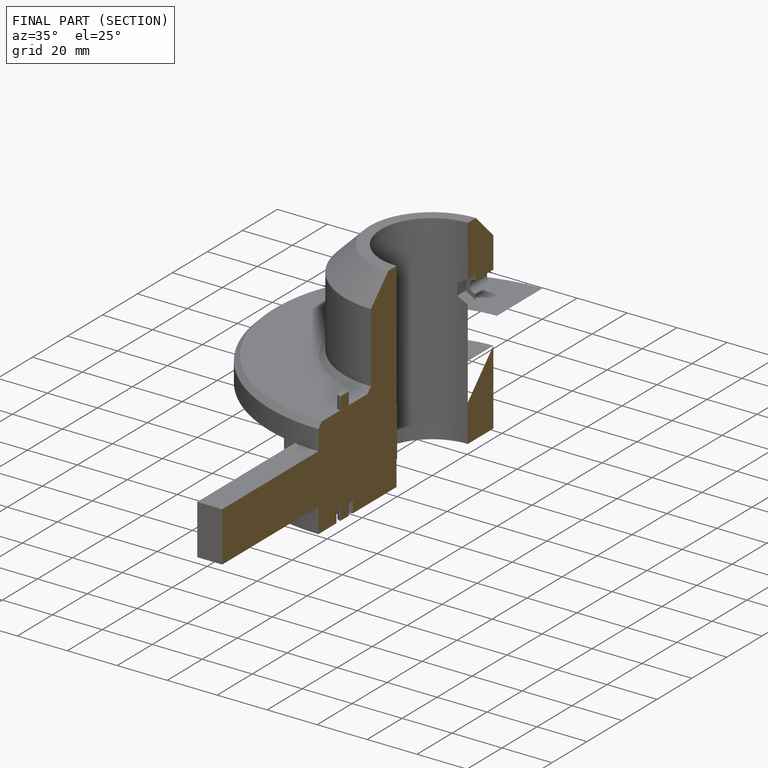
[diagram: finished part — half-section view (interior)]
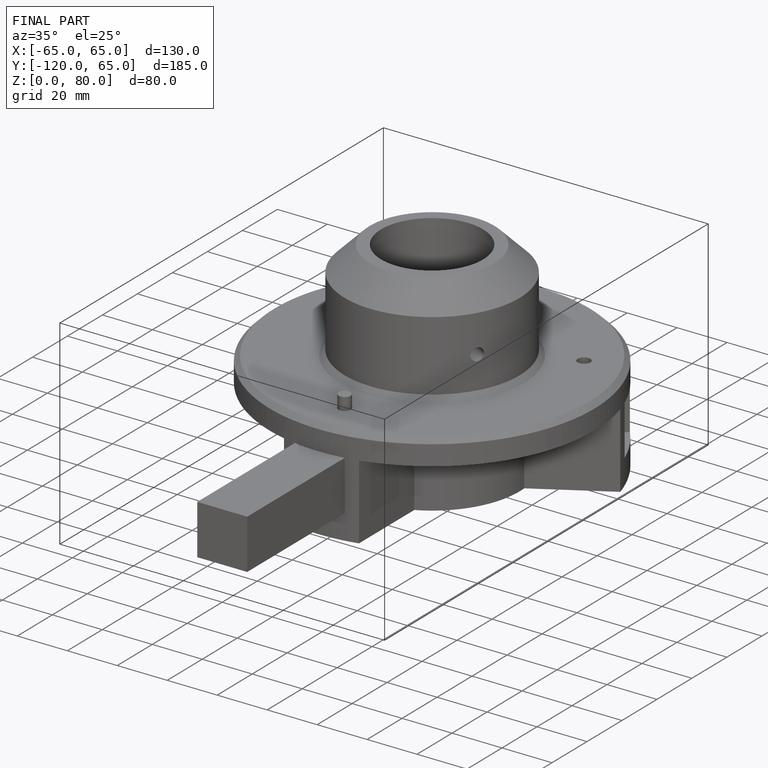
[diagram: finished part — iso view with bounding-box wireframe]
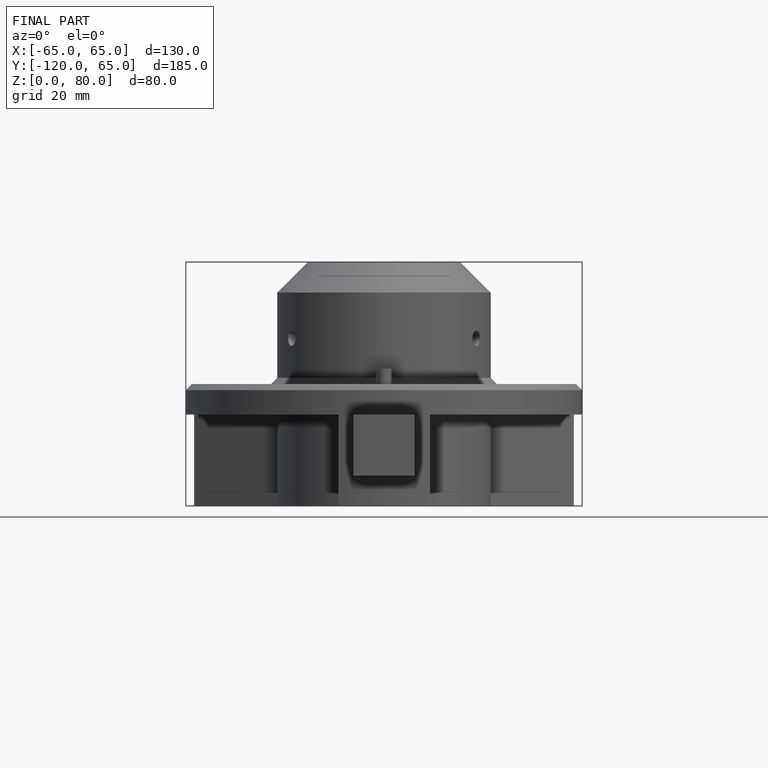
[diagram: finished part — front view with bounding-box wireframe]
